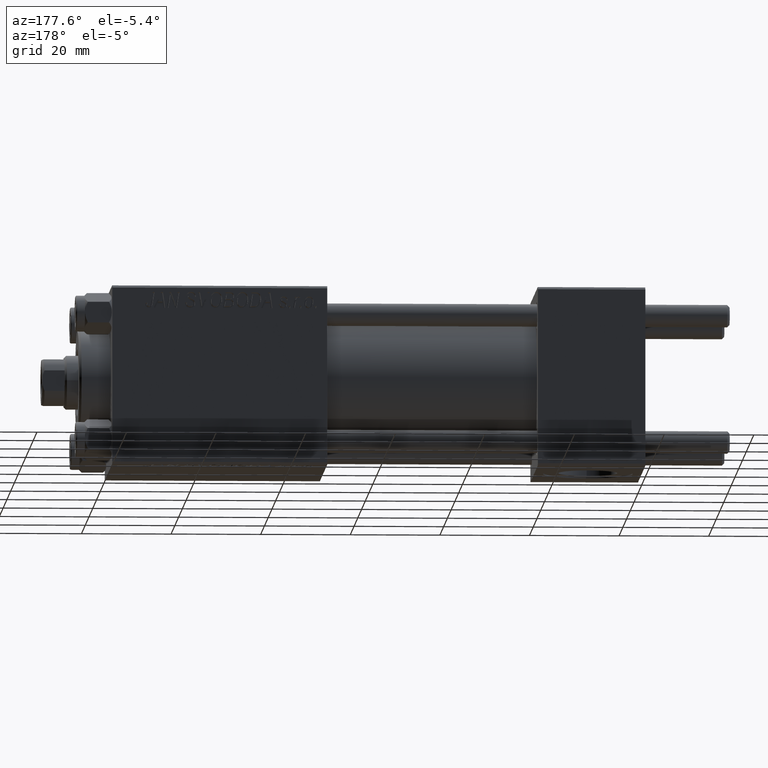
[diagram: clean part render]
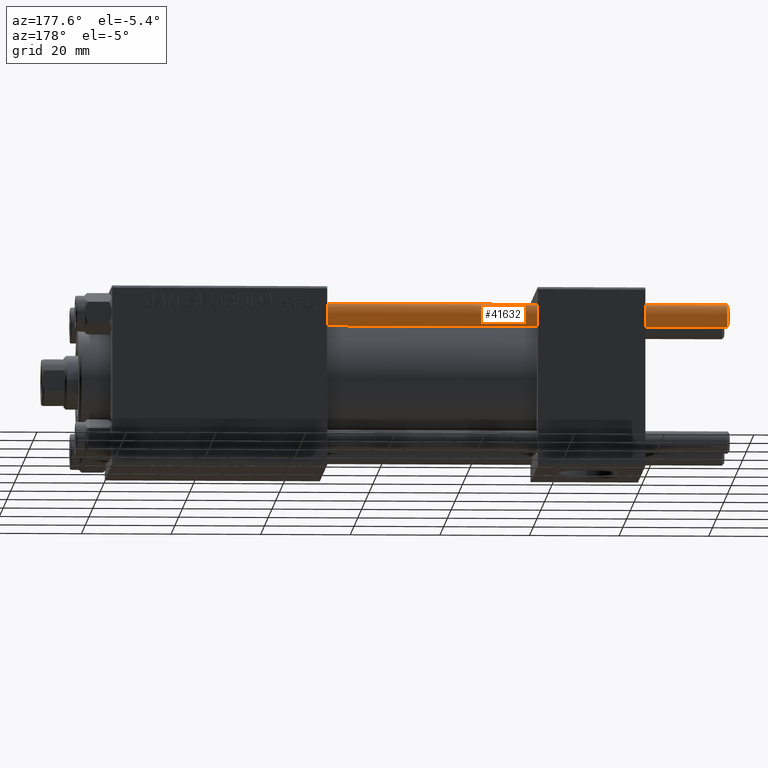
[diagram: same view with one face highlighted and labeled with its STEP entity id]
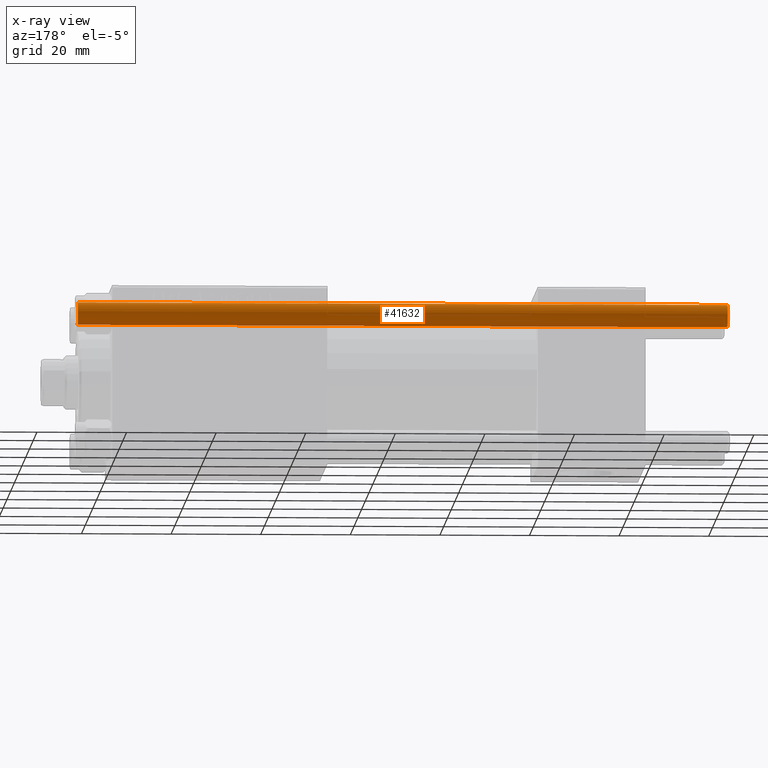
[diagram: x-ray of the same camera — body ghosted, the highlighted face saturated]
A machine part, auxiliary view. The second image highlights one B-rep face of the part: STEP entity #41632.
The next image is the same camera in x-ray: the body ghosted, the highlighted face saturated — about 0% of this face is hidden behind the body in this view.
In plain terms, the highlighted cylindrical surface (edge-blend (fillet) strip) has radius 2.5 mm, axis along (-1, -0, -0).
Its self-contained STEP definition (entity closure, byte-faithful):
#615 = ORIENTED_EDGE ( 'NONE', *, *, #37640, .F. ) ;
#1766 = EDGE_LOOP ( 'NONE', ( #5671, #4480, #7371, #615 ) ) ;
#4480 = ORIENTED_EDGE ( 'NONE', *, *, #6574, .T. ) ;
#5671 = ORIENTED_EDGE ( 'NONE', *, *, #27741, .T. ) ;
#6329 = CARTESIAN_POINT ( 'NONE',  ( -2.500000000000000000, 0.000000000000000000, 0.5000000000000559552 ) ) ;
#6574 = EDGE_CURVE ( 'NONE', #14696, #8430, #10821, .T. ) ;
#6658 = DIRECTION ( 'NONE',  ( 0.000000000000000000, 0.000000000000000000, -1.000000000000000000 ) ) ;
#7142 = AXIS2_PLACEMENT_3D ( 'NONE', #45203, #15234, #11457 ) ;
#7371 = ORIENTED_EDGE ( 'NONE', *, *, #10494, .T. ) ;
#8430 = VERTEX_POINT ( 'NONE', #42373 ) ;
#9183 = DIRECTION ( 'NONE',  ( -0.000000000000000000, -0.000000000000000000, -1.000000000000000000 ) ) ;
#10494 = EDGE_CURVE ( 'NONE', #8430, #46309, #31298, .T. ) ;
#10684 = DIRECTION ( 'NONE',  ( 1.000000000000000000, 0.000000000000000000, 0.000000000000000000 ) ) ;
#10821 = LINE ( 'NONE', #18625, #42030 ) ;
#11457 = DIRECTION ( 'NONE',  ( 1.000000000000000000, 0.000000000000000000, 0.000000000000000000 ) ) ;
#12972 = CYLINDRICAL_SURFACE ( 'NONE', #31228, 2.500000000000000000 ) ;
#13240 = CIRCLE ( 'NONE', #44585, 2.500000000000000000 ) ;
#14696 = VERTEX_POINT ( 'NONE', #30734 ) ;
#15234 = DIRECTION ( 'NONE',  ( -0.000000000000000000, -0.000000000000000000, 1.000000000000000000 ) ) ;
#17039 = CARTESIAN_POINT ( 'NONE',  ( -2.500000000000000000, 0.000000000000000000, 146.0000000000000000 ) ) ;
#17288 = LINE ( 'NONE', #17039, #42524 ) ;
#18625 = CARTESIAN_POINT ( 'NONE',  ( 2.500000000000000000, 3.061616997868383141E-16, 146.0000000000000000 ) ) ;
#24529 = DIRECTION ( 'NONE',  ( -1.000000000000000000, 0.000000000000000000, 0.000000000000000000 ) ) ;
#25307 = CARTESIAN_POINT ( 'NONE',  ( 0.000000000000000000, 0.000000000000000000, 145.5000000000000284 ) ) ;
#27741 = EDGE_CURVE ( 'NONE', #49628, #14696, #13240, .T. ) ;
#28818 = CARTESIAN_POINT ( 'NONE',  ( 0.000000000000000000, 0.000000000000000000, 146.0000000000000000 ) ) ;
#30734 = CARTESIAN_POINT ( 'NONE',  ( 2.500000000000000000, 3.061616997868383141E-16, 145.5000000000000284 ) ) ;
#31228 = AXIS2_PLACEMENT_3D ( 'NONE', #28818, #9183, #24529 ) ;
#31298 = CIRCLE ( 'NONE', #7142, 2.500000000000000000 ) ;
#33986 = DIRECTION ( 'NONE',  ( -0.000000000000000000, -0.000000000000000000, -1.000000000000000000 ) ) ;
#37640 = EDGE_CURVE ( 'NONE', #49628, #46309, #17288, .T. ) ;
#38919 = CARTESIAN_POINT ( 'NONE',  ( -2.500000000000000000, 0.000000000000000000, 145.5000000000000284 ) ) ;
#41632 = ADVANCED_FACE ( 'NONE', ( #47460 ), #12972, .T. ) ;
#42030 = VECTOR ( 'NONE', #33986, 1000.000000000000000 ) ;
#42373 = CARTESIAN_POINT ( 'NONE',  ( 2.500000000000000000, 3.061616997868383141E-16, 0.5000000000000559552 ) ) ;
#42524 = VECTOR ( 'NONE', #44491, 1000.000000000000000 ) ;
#44491 = DIRECTION ( 'NONE',  ( -0.000000000000000000, -0.000000000000000000, -1.000000000000000000 ) ) ;
#44585 = AXIS2_PLACEMENT_3D ( 'NONE', #25307, #6658, #10684 ) ;
#45203 = CARTESIAN_POINT ( 'NONE',  ( 0.000000000000000000, 0.000000000000000000, 0.5000000000000559552 ) ) ;
#46309 = VERTEX_POINT ( 'NONE', #6329 ) ;
#47460 = FACE_OUTER_BOUND ( 'NONE', #1766, .T. ) ;
#49628 = VERTEX_POINT ( 'NONE', #38919 ) ;